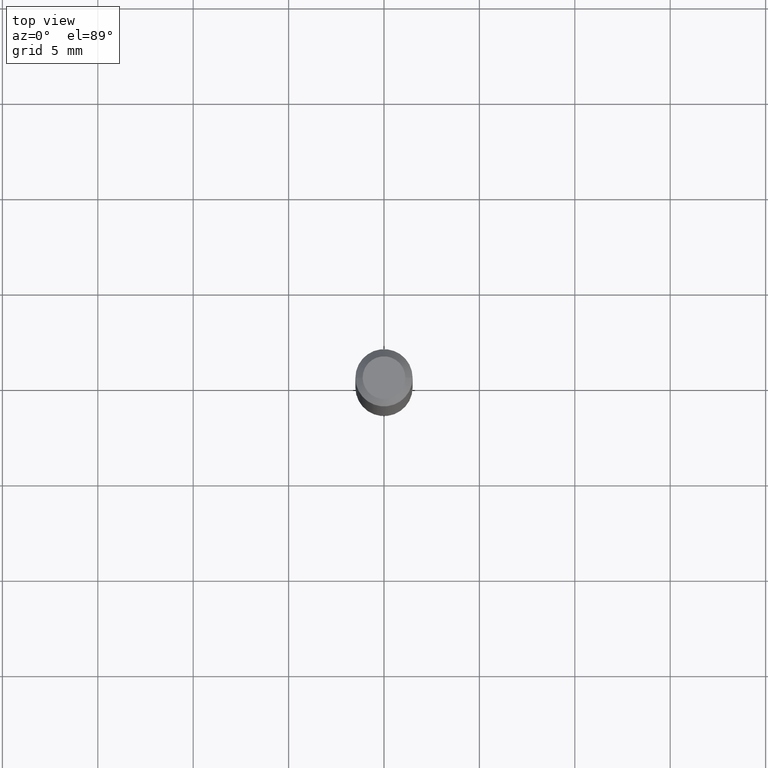
[diagram: clean part render]
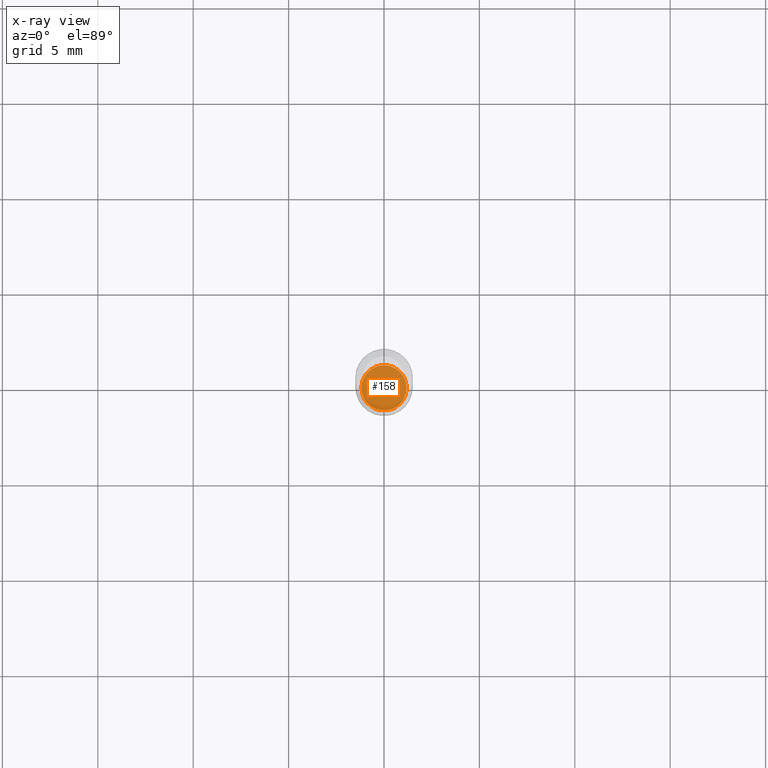
[diagram: x-ray — body ghosted, one internal face saturated and labeled with its STEP entity id]
A machine part, top view, then the same camera in x-ray: the body is ghosted and one INTERNAL B-rep face — a face not visible from any outside direction — is saturated and labeled: STEP entity #158.
In plain terms, the highlighted planar face has unit normal (-0, 0, 1).
Its self-contained STEP definition (entity closure, byte-faithful):
#6 = CARTESIAN_POINT ( 'NONE',  ( 2.974912802724219302E-29, -4.247387048702686999E-15, -1.216500000000000137 ) ) ;
#48 = AXIS2_PLACEMENT_3D ( 'NONE', #404, #219, #122 ) ;
#50 = CARTESIAN_POINT ( 'NONE',  ( 2.974912802724219302E-29, -4.247387048702686999E-15, -1.216500000000000137 ) ) ;
#79 = DIRECTION ( 'NONE',  ( 1.000000000000000000, -6.982962677686266711E-15, 0.000000000000000000 ) ) ;
#95 = VERTEX_POINT ( 'NONE', #243 ) ;
#122 = DIRECTION ( 'NONE',  ( 1.000000000000000000, -6.982962677686265922E-15, 4.876176775795935793E-29 ) ) ;
#123 = EDGE_CURVE ( 'NONE', #95, #233, #460, .T. ) ;
#151 = EDGE_CURVE ( 'NONE', #233, #95, #399, .T. ) ;
#157 = DIRECTION ( 'NONE',  ( -2.445468806185136597E-29, 3.491481338843145583E-15, 1.000000000000000000 ) ) ;
#158 = ADVANCED_FACE ( 'NONE', ( #261 ), #230, .F. ) ;
#159 = EDGE_LOOP ( 'NONE', ( #205, #411 ) ) ;
#205 = ORIENTED_EDGE ( 'NONE', *, *, #123, .F. ) ;
#219 = DIRECTION ( 'NONE',  ( -2.438088387897960049E-29, 3.491481338843145188E-15, 1.000000000000000000 ) ) ;
#220 = AXIS2_PLACEMENT_3D ( 'NONE', #6, #157, #367 ) ;
#230 = PLANE ( 'NONE',  #48 ) ;
#233 = VERTEX_POINT ( 'NONE', #401 ) ;
#243 = CARTESIAN_POINT ( 'NONE',  ( 0.04674999999999999295, -4.573840553884519999E-15, -1.216500000000000137 ) ) ;
#261 = FACE_OUTER_BOUND ( 'NONE', #159, .T. ) ;
#295 = DIRECTION ( 'NONE',  ( -2.445468806185136597E-29, 3.491481338843145583E-15, 1.000000000000000000 ) ) ;
#352 = AXIS2_PLACEMENT_3D ( 'NONE', #50, #295, #79 ) ;
#367 = DIRECTION ( 'NONE',  ( 1.000000000000000000, -6.982962677686266711E-15, 0.000000000000000000 ) ) ;
#399 = CIRCLE ( 'NONE', #352, 0.04674999999999999295 ) ;
#401 = CARTESIAN_POINT ( 'NONE',  ( -0.04674999999999999295, -3.912559092560728469E-15, -1.216500000000000137 ) ) ;
#404 = CARTESIAN_POINT ( 'NONE',  ( 2.974912802724219302E-29, -4.247387048702686999E-15, -1.216500000000000137 ) ) ;
#411 = ORIENTED_EDGE ( 'NONE', *, *, #151, .F. ) ;
#460 = CIRCLE ( 'NONE', #220, 0.04674999999999999295 ) ;